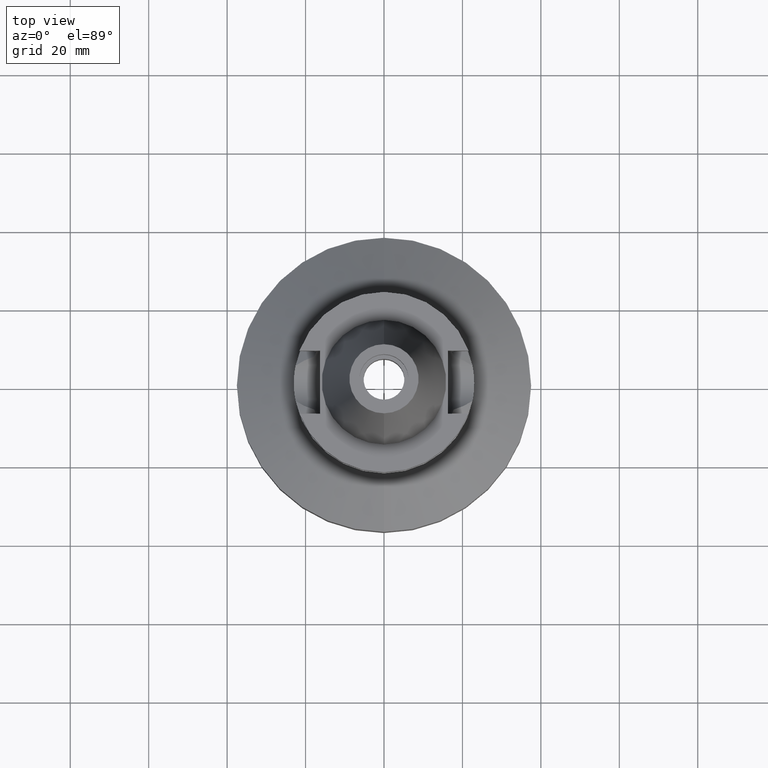
[diagram: clean part render]
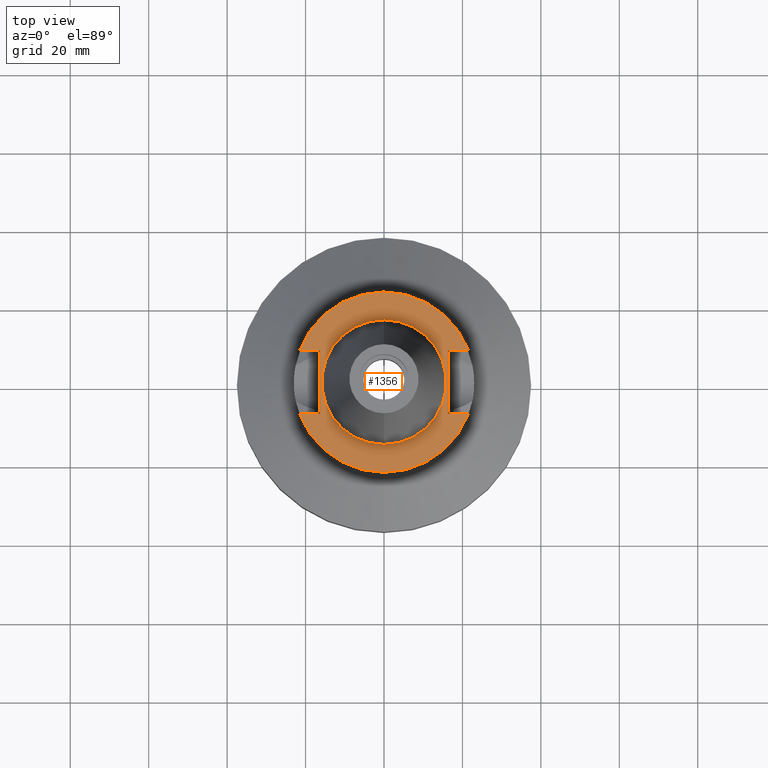
[diagram: same view with one face highlighted and labeled with its STEP entity id]
A machine part, top view. The second image highlights one B-rep face of the part: STEP entity #1356.
In plain terms, the highlighted planar face has unit normal (0, 0, -1).
Its self-contained STEP definition (entity closure, byte-faithful):
#94=DIRECTION('',(0.E0,1.E0,0.E0));
#95=VECTOR('',#94,1.61E1);
#96=CARTESIAN_POINT('',(-1.63E1,-8.05E0,-1.E0));
#97=LINE('',#96,#95);
#101=DIRECTION('',(-1.E0,9.347030801892E-14,0.E0));
#102=VECTOR('',#101,5.245243094473E0);
#103=CARTESIAN_POINT('',(-1.63E1,8.05E0,-1.E0));
#104=LINE('',#103,#102);
#108=CARTESIAN_POINT('',(0.E0,0.E0,-1.E0));
#109=DIRECTION('',(0.E0,0.E0,-1.E0));
#110=DIRECTION('',(-9.367496997598E-1,3.5E-1,0.E0));
#111=AXIS2_PLACEMENT_3D('',#108,#109,#110);
#116=CARTESIAN_POINT('',(0.E0,0.E0,-1.E0));
#117=DIRECTION('',(0.E0,0.E0,-1.E0));
#118=DIRECTION('',(0.E0,1.E0,0.E0));
#119=AXIS2_PLACEMENT_3D('',#116,#117,#118);
#124=DIRECTION('',(0.E0,-1.E0,0.E0));
#125=VECTOR('',#124,1.61E1);
#126=CARTESIAN_POINT('',(1.63E1,8.05E0,-1.E0));
#127=LINE('',#126,#125);
#131=DIRECTION('',(1.E0,-9.347030801892E-14,0.E0));
#132=VECTOR('',#131,5.245243094473E0);
#133=CARTESIAN_POINT('',(1.63E1,-8.05E0,-1.E0));
#134=LINE('',#133,#132);
#138=CARTESIAN_POINT('',(0.E0,0.E0,-1.E0));
#139=DIRECTION('',(0.E0,0.E0,-1.E0));
#140=DIRECTION('',(9.367496997598E-1,-3.5E-1,0.E0));
#141=AXIS2_PLACEMENT_3D('',#138,#139,#140);
#146=CARTESIAN_POINT('',(0.E0,0.E0,-1.E0));
#147=DIRECTION('',(0.E0,0.E0,-1.E0));
#148=DIRECTION('',(0.E0,-1.E0,0.E0));
#149=AXIS2_PLACEMENT_3D('',#146,#147,#148);
#154=CARTESIAN_POINT('',(0.E0,0.E0,-9.999999999999E-1));
#155=DIRECTION('',(0.E0,0.E0,1.E0));
#156=DIRECTION('',(0.E0,-1.E0,0.E0));
#157=AXIS2_PLACEMENT_3D('',#154,#155,#156);
#162=CARTESIAN_POINT('',(0.E0,0.E0,-9.999999999999E-1));
#163=DIRECTION('',(0.E0,0.E0,1.E0));
#164=DIRECTION('',(0.E0,1.E0,0.E0));
#165=AXIS2_PLACEMENT_3D('',#162,#163,#164);
#210=DIRECTION('',(-1.E0,-9.313164748262E-14,0.E0));
#211=VECTOR('',#210,5.245243094473E0);
#212=CARTESIAN_POINT('',(-1.63E1,-8.05E0,-1.E0));
#213=LINE('',#212,#211);
#333=DIRECTION('',(1.E0,9.380896855522E-14,0.E0));
#334=VECTOR('',#333,5.245243094473E0);
#335=CARTESIAN_POINT('',(1.63E1,8.05E0,-1.E0));
#336=LINE('',#335,#334);
#1223=CARTESIAN_POINT('',(-1.63E1,-8.05E0,-1.E0));
#1224=VERTEX_POINT('',#1223);
#1225=CARTESIAN_POINT('',(-2.154524309447E1,-8.05E0,-1.E0));
#1226=VERTEX_POINT('',#1225);
#1227=CARTESIAN_POINT('',(-1.63E1,8.05E0,-1.E0));
#1228=VERTEX_POINT('',#1227);
#1229=CARTESIAN_POINT('',(-2.154524309447E1,8.05E0,-1.E0));
#1230=VERTEX_POINT('',#1229);
#1231=CARTESIAN_POINT('',(0.E0,2.3E1,-1.E0));
#1232=CARTESIAN_POINT('',(2.154524309447E1,8.05E0,-1.E0));
#1233=VERTEX_POINT('',#1231);
#1234=VERTEX_POINT('',#1232);
#1235=CARTESIAN_POINT('',(1.63E1,8.05E0,-1.E0));
#1236=VERTEX_POINT('',#1235);
#1237=CARTESIAN_POINT('',(1.63E1,-8.05E0,-1.E0));
#1238=VERTEX_POINT('',#1237);
#1239=CARTESIAN_POINT('',(2.154524309447E1,-8.05E0,-1.E0));
#1240=VERTEX_POINT('',#1239);
#1241=CARTESIAN_POINT('',(0.E0,-2.3E1,-1.E0));
#1242=VERTEX_POINT('',#1241);
#1243=CARTESIAN_POINT('',(0.E0,-1.5875E1,-9.999999999999E-1));
#1244=CARTESIAN_POINT('',(0.E0,1.5875E1,-9.999999999999E-1));
#1245=VERTEX_POINT('',#1243);
#1246=VERTEX_POINT('',#1244);
#1325=CARTESIAN_POINT('',(0.E0,0.E0,-1.E0));
#1326=DIRECTION('',(0.E0,0.E0,-1.E0));
#1327=DIRECTION('',(0.E0,-1.E0,0.E0));
#1328=AXIS2_PLACEMENT_3D('',#1325,#1326,#1327);
#1329=PLANE('',#1328);
#1331=ORIENTED_EDGE('',*,*,#1330,.T.);
#1333=ORIENTED_EDGE('',*,*,#1332,.T.);
#1335=ORIENTED_EDGE('',*,*,#1334,.T.);
#1337=ORIENTED_EDGE('',*,*,#1336,.T.);
#1339=ORIENTED_EDGE('',*,*,#1338,.F.);
#1341=ORIENTED_EDGE('',*,*,#1340,.T.);
#1343=ORIENTED_EDGE('',*,*,#1342,.T.);
#1345=ORIENTED_EDGE('',*,*,#1344,.T.);
#1347=ORIENTED_EDGE('',*,*,#1346,.T.);
#1349=ORIENTED_EDGE('',*,*,#1348,.F.);
#1350=EDGE_LOOP('',(#1331,#1333,#1335,#1337,#1339,#1341,#1343,#1345,#1347,
#1349));
#1351=FACE_OUTER_BOUND('',#1350,.F.);
#1352=ORIENTED_EDGE('',*,*,#1304,.T.);
#1353=ORIENTED_EDGE('',*,*,#1320,.T.);
#1354=EDGE_LOOP('',(#1352,#1353));
#1355=FACE_BOUND('',#1354,.F.);
#112=CIRCLE('',#111,2.3E1);
#120=CIRCLE('',#119,2.3E1);
#142=CIRCLE('',#141,2.3E1);
#150=CIRCLE('',#149,2.3E1);
#158=CIRCLE('',#157,1.5875E1);
#166=CIRCLE('',#165,1.5875E1);
#1304=EDGE_CURVE('',#1245,#1246,#158,.T.);
#1320=EDGE_CURVE('',#1246,#1245,#166,.T.);
#1330=EDGE_CURVE('',#1224,#1228,#97,.T.);
#1332=EDGE_CURVE('',#1228,#1230,#104,.T.);
#1334=EDGE_CURVE('',#1230,#1233,#112,.T.);
#1336=EDGE_CURVE('',#1233,#1234,#120,.T.);
#1338=EDGE_CURVE('',#1236,#1234,#336,.T.);
#1340=EDGE_CURVE('',#1236,#1238,#127,.T.);
#1342=EDGE_CURVE('',#1238,#1240,#134,.T.);
#1344=EDGE_CURVE('',#1240,#1242,#142,.T.);
#1346=EDGE_CURVE('',#1242,#1226,#150,.T.);
#1348=EDGE_CURVE('',#1224,#1226,#213,.T.);
#1356=ADVANCED_FACE('',(#1351,#1355),#1329,.F.);